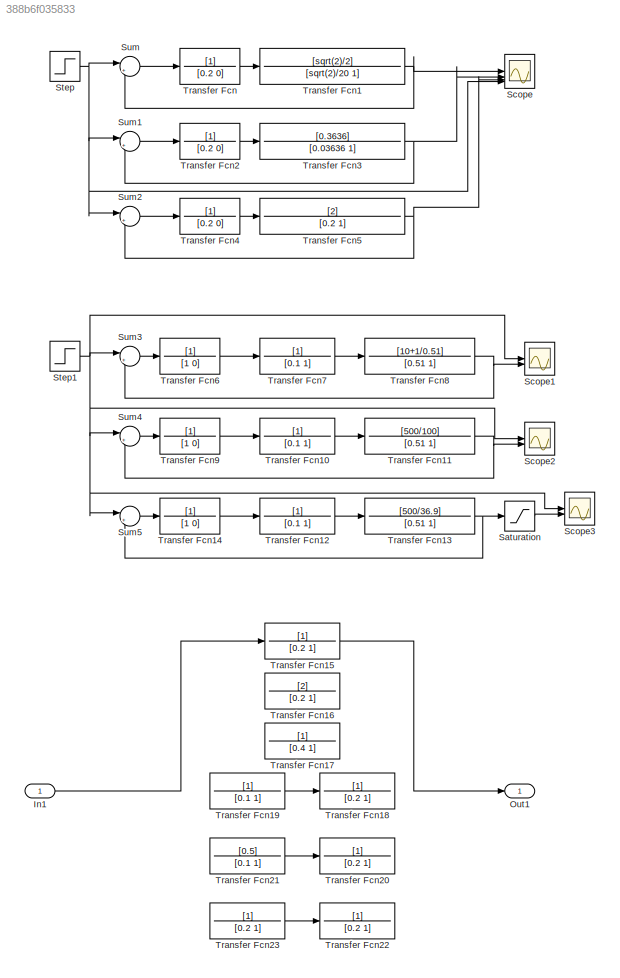
MODEL slx_388b6f035833
KIND model
CONFIG AbsTol = auto
CONFIG EnableMultiTasking = off
CONFIG FixedStep = auto
CONFIG MaxStep = auto
CONFIG MinStep = auto
CONFIG RelTol = 1e-3
CONFIG SampleTimeConstraint = Unconstrained
CONFIG SolverName = VariableStepAuto
CONFIG StartTime = 0.0
CONFIG StopTime = 5
BLOCK [Inport] In1
BLOCK [Outport] Out1
BLOCK [Saturate] Saturation
  LowerLimit = -100
  UpperLimit = 9
BLOCK [Scope] Scope
  Floating = off
  NumInputPorts = 4
  ScopeSpecificationString = Simulink.scopes.TimeScopeBlockCfg('CurrentConfiguration', extmgr.ConfigurationSet(extmgr.Configuration('Core','General UI',true),extmgr.Configuration('Core','Source UI',true),extmgr.Configuration('Sources','WiredSimulink',true),extmgr.Configuration('Visuals','Time Domain',true,'SerializedDisplays',{struct('MinYLimReal','-0.81309','MaxYLimReal','7.3178','YLabelReal','','MinYLimMag','0.00000','MaxYL...<+1423ch>
BLOCK [Scope] Scope1
  Floating = off
  NumInputPorts = 2
  ScopeSpecificationString = Simulink.scopes.TimeScopeBlockCfg('CurrentConfiguration', extmgr.ConfigurationSet(extmgr.Configuration('Core','General UI',true),extmgr.Configuration('Core','Source UI',true),extmgr.Configuration('Sources','WiredSimulink',true,'DataLoggingVariableName','ScopeData1'),extmgr.Configuration('Visuals','Time Domain',true,'SerializedDisplays',{struct('MinYLimReal','-1.2111','MaxYLimReal','10.89994','YLab...<+1411ch>
BLOCK [Scope] Scope2
  Floating = off
  NumInputPorts = 2
  ScopeSpecificationString = Simulink.scopes.TimeScopeBlockCfg('CurrentConfiguration', extmgr.ConfigurationSet(extmgr.Configuration('Core','General UI',true),extmgr.Configuration('Core','Source UI',true),extmgr.Configuration('Sources','WiredSimulink',true,'DataLoggingVariableName','ScopeData2'),extmgr.Configuration('Visuals','Time Domain',true,'SerializedDisplays',{struct('MinYLimReal','-0.9823','MaxYLimReal','8.84067','YLabe...<+1408ch>
BLOCK [Scope] Scope3
  Floating = off
  NumInputPorts = 2
  ScopeSpecificationString = Simulink.scopes.TimeScopeBlockCfg('CurrentConfiguration', extmgr.ConfigurationSet(extmgr.Configuration('Core','General UI',true),extmgr.Configuration('Core','Source UI',true),extmgr.Configuration('Sources','WiredSimulink',true,'DataLoggingVariableName','ScopeData3'),extmgr.Configuration('Visuals','Time Domain',true,'SerializedDisplays',{struct('MinYLimReal','-2.24555','MaxYLimReal','10.24951','YLa...<+1410ch>
BLOCK [Step] Step
  After = 5
  SampleTime = 0
BLOCK [Step] Step1
  After = 5
  SampleTime = 0
BLOCK [Sum] Sum
  Inputs = |+-
BLOCK [Sum] Sum1
  Inputs = |+-
BLOCK [Sum] Sum2
  Inputs = |+-
BLOCK [Sum] Sum3
  Inputs = |+-
BLOCK [Sum] Sum4
  Inputs = |+-
BLOCK [Sum] Sum5
  Inputs = |+-
BLOCK [TransferFcn] Transfer Fcn
  Denominator = [0.2 0]
BLOCK [TransferFcn] Transfer Fcn1
  Denominator = [sqrt(2)/20 1]
  Numerator = [sqrt(2)/2]
BLOCK [TransferFcn] Transfer Fcn10
  Denominator = [0.1 1]
BLOCK [TransferFcn] Transfer Fcn11
  Denominator = [0.51 1]
  Numerator = [500/100]
BLOCK [TransferFcn] Transfer Fcn12
  Denominator = [0.1 1]
BLOCK [TransferFcn] Transfer Fcn13
  Denominator = [0.51 1]
  Numerator = [500/36.9]
BLOCK [TransferFcn] Transfer Fcn14
  Denominator = [1 0]
BLOCK [TransferFcn] Transfer Fcn15
  Denominator = [0.2 1]
BLOCK [TransferFcn] Transfer Fcn16
  Denominator = [0.2 1]
  Numerator = [2]
BLOCK [TransferFcn] Transfer Fcn17
  Denominator = [0.4 1]
BLOCK [TransferFcn] Transfer Fcn18
  Denominator = [0.2 1]
BLOCK [TransferFcn] Transfer Fcn19
  Denominator = [0.1 1]
BLOCK [TransferFcn] Transfer Fcn2
  Denominator = [0.2 0]
BLOCK [TransferFcn] Transfer Fcn20
  Denominator = [0.2 1]
BLOCK [TransferFcn] Transfer Fcn21
  Denominator = [0.1 1]
  Numerator = [0.5]
BLOCK [TransferFcn] Transfer Fcn22
  Denominator = [0.2 1]
BLOCK [TransferFcn] Transfer Fcn23
  Denominator = [0.2 1]
BLOCK [TransferFcn] Transfer Fcn3
  Denominator = [0.03636 1]
  Numerator = [0.3636]
BLOCK [TransferFcn] Transfer Fcn4
  Denominator = [0.2 0]
BLOCK [TransferFcn] Transfer Fcn5
  Denominator = [0.2 1]
  Numerator = [2]
BLOCK [TransferFcn] Transfer Fcn6
  Denominator = [1 0]
BLOCK [TransferFcn] Transfer Fcn7
  Denominator = [0.1 1]
BLOCK [TransferFcn] Transfer Fcn8
  Denominator = [0.51 1]
  Numerator = [10+1/0.51]
BLOCK [TransferFcn] Transfer Fcn9
  Denominator = [1 0]
LINE In1:1 -> Transfer Fcn15:1
LINE Saturation:1 -> Scope3:2
NET Step1:1 -> Scope1:1, Scope2:1, Scope3:1, Sum3:1, Sum4:1, Sum5:1
NET Step:1 -> Scope:4, Sum1:1, Sum2:1, Sum:1
LINE Sum1:1 -> Transfer Fcn2:1
LINE Sum2:1 -> Transfer Fcn4:1
LINE Sum3:1 -> Transfer Fcn6:1
LINE Sum4:1 -> Transfer Fcn9:1
LINE Sum5:1 -> Transfer Fcn14:1
LINE Sum:1 -> Transfer Fcn:1
LINE Transfer Fcn10:1 -> Transfer Fcn11:1
NET Transfer Fcn11:1 -> Scope2:2, Sum4:2
LINE Transfer Fcn12:1 -> Transfer Fcn13:1
NET Transfer Fcn13:1 -> Saturation:1, Sum5:2
LINE Transfer Fcn14:1 -> Transfer Fcn12:1
LINE Transfer Fcn15:1 -> Out1:1
LINE Transfer Fcn19:1 -> Transfer Fcn18:1
NET Transfer Fcn1:1 -> Scope:1, Sum:2
LINE Transfer Fcn21:1 -> Transfer Fcn20:1
LINE Transfer Fcn23:1 -> Transfer Fcn22:1
LINE Transfer Fcn2:1 -> Transfer Fcn3:1
NET Transfer Fcn3:1 -> Scope:2, Sum1:2
LINE Transfer Fcn4:1 -> Transfer Fcn5:1
NET Transfer Fcn5:1 -> Scope:3, Sum2:2
LINE Transfer Fcn6:1 -> Transfer Fcn7:1
LINE Transfer Fcn7:1 -> Transfer Fcn8:1
NET Transfer Fcn8:1 -> Scope1:2, Sum3:2
LINE Transfer Fcn9:1 -> Transfer Fcn10:1
LINE Transfer Fcn:1 -> Transfer Fcn1:1
note: NET lines group one-source signal fan-out (src -> all destinations, sorted); 1:1 wires keep LINE
